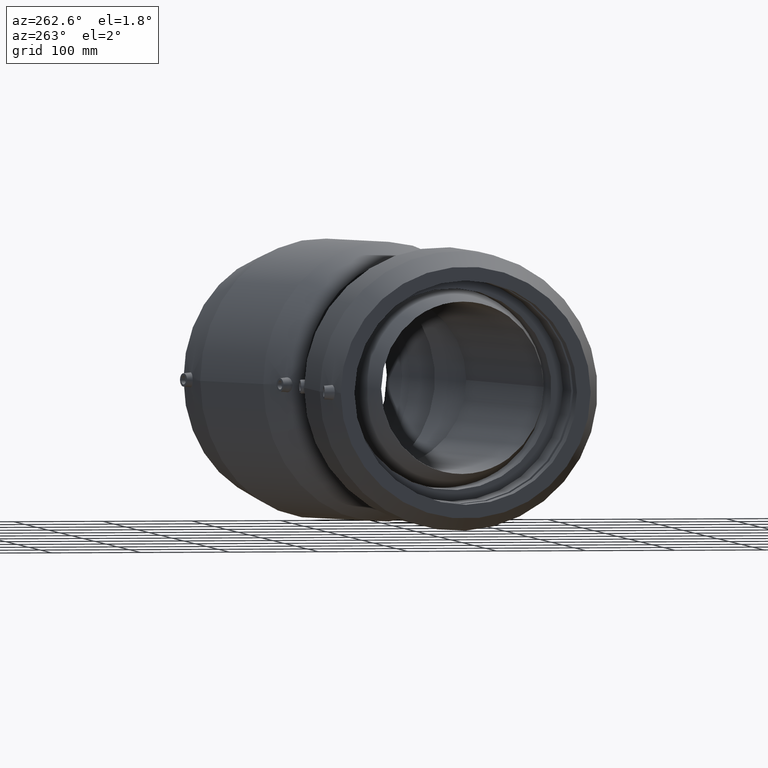
[diagram: clean part render]
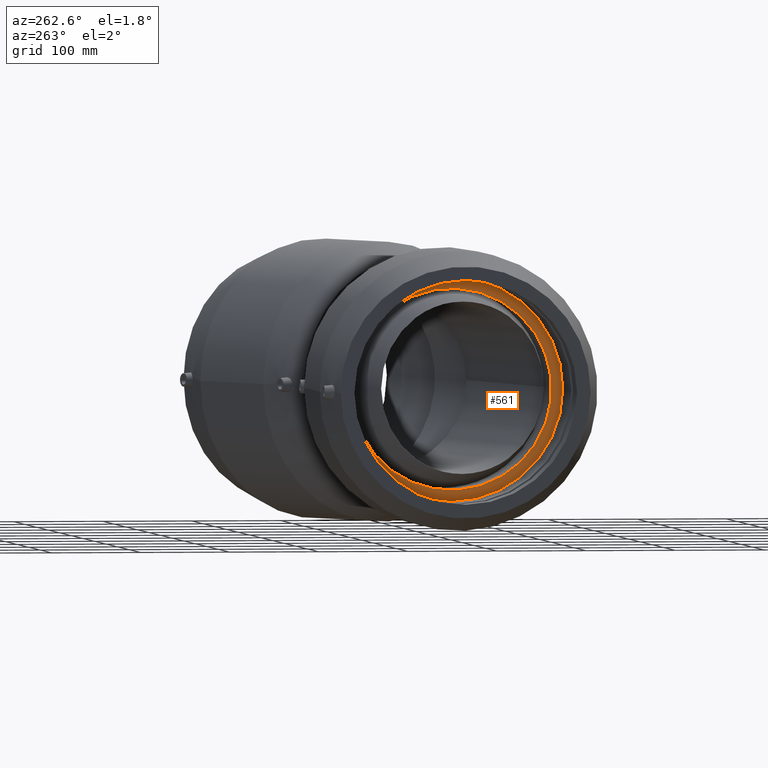
[diagram: same view with one face highlighted and labeled with its STEP entity id]
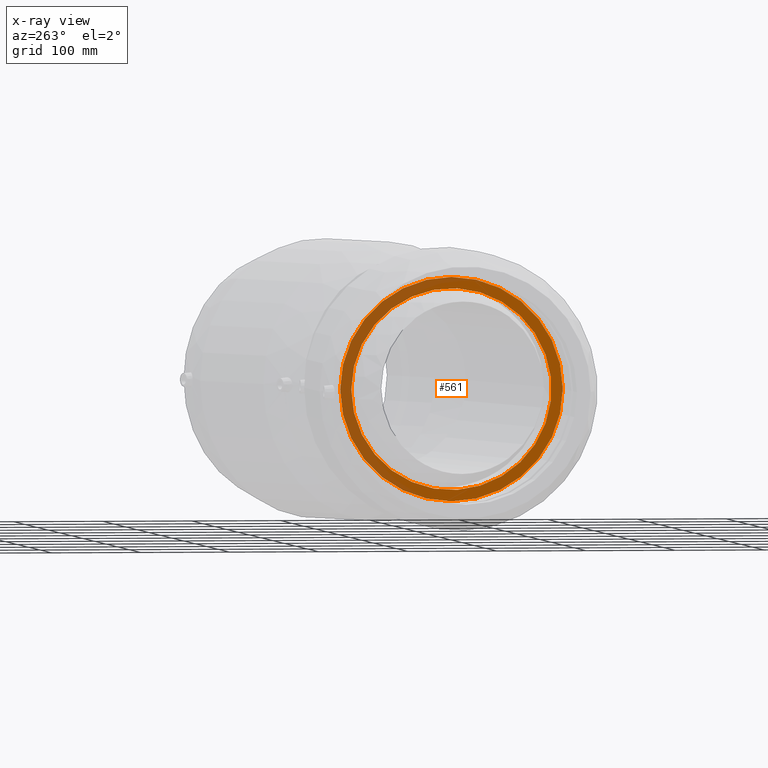
[diagram: x-ray of the same camera — body ghosted, the highlighted face saturated]
A machine part, auxiliary view. The second image highlights one B-rep face of the part: STEP entity #561.
The next image is the same camera in x-ray: the body ghosted, the highlighted face saturated — about 39% of this face is hidden behind the body in this view.
In plain terms, the highlighted planar face has unit normal (-1, -0, 0).
Its self-contained STEP definition (entity closure, byte-faithful):
#32=PLANE('',#634);
#82=FACE_BOUND('',#203,.T.);
#133=FACE_OUTER_BOUND('',#202,.T.);
#202=EDGE_LOOP('',(#475));
#203=EDGE_LOOP('',(#476));
#278=CIRCLE('',#605,112.5);
#292=CIRCLE('',#635,125.);
#327=VERTEX_POINT('',#1119);
#343=VERTEX_POINT('',#1233);
#382=EDGE_CURVE('',#327,#327,#278,.T.);
#398=EDGE_CURVE('',#343,#343,#292,.T.);
#475=ORIENTED_EDGE('',*,*,#398,.F.);
#476=ORIENTED_EDGE('',*,*,#382,.T.);
#561=ADVANCED_FACE('',(#133,#82),#32,.T.);
#605=AXIS2_PLACEMENT_3D('',#1120,#717,#718);
#634=AXIS2_PLACEMENT_3D('',#1232,#775,#776);
#635=AXIS2_PLACEMENT_3D('',#1234,#777,#778);
#717=DIRECTION('center_axis',(1.,1.83697019872103E-16,0.));
#718=DIRECTION('ref_axis',(0.,0.,-1.));
#775=DIRECTION('center_axis',(-1.,-1.83697019872103E-16,0.));
#776=DIRECTION('ref_axis',(0.,0.,1.));
#777=DIRECTION('center_axis',(1.,1.83697019872103E-16,0.));
#778=DIRECTION('ref_axis',(0.,0.,-1.));
#1119=CARTESIAN_POINT('',(-5.80000000000004,112.5,0.));
#1120=CARTESIAN_POINT('Origin',(-5.80000000000002,2.25947334442687E-14,
0.));
#1232=CARTESIAN_POINT('Origin',(-5.80000000000004,125.,0.));
#1233=CARTESIAN_POINT('',(-5.80000000000004,125.,0.));
#1234=CARTESIAN_POINT('Origin',(-5.80000000000002,2.25947334442687E-14,
0.));